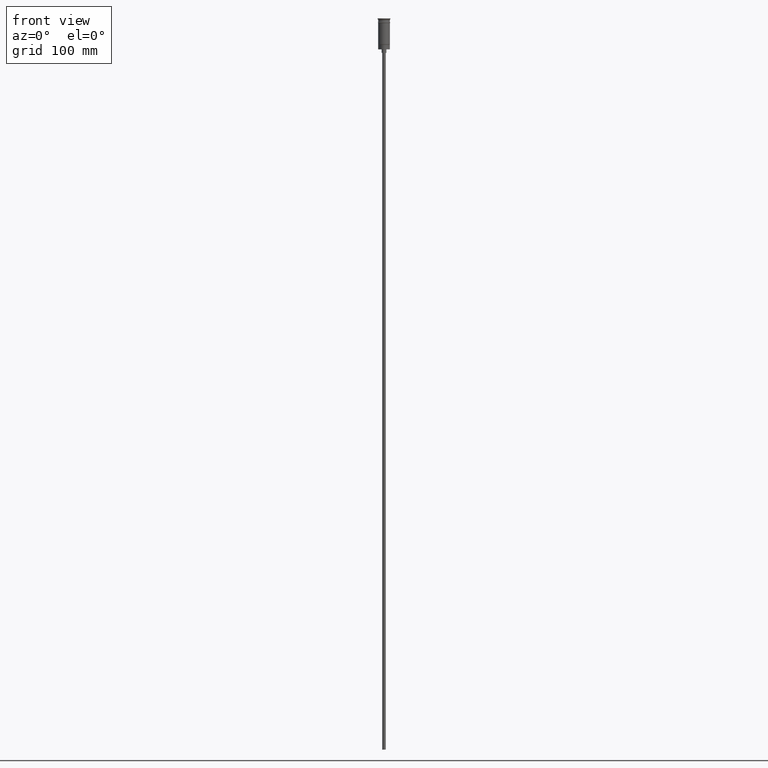
[diagram: clean part render]
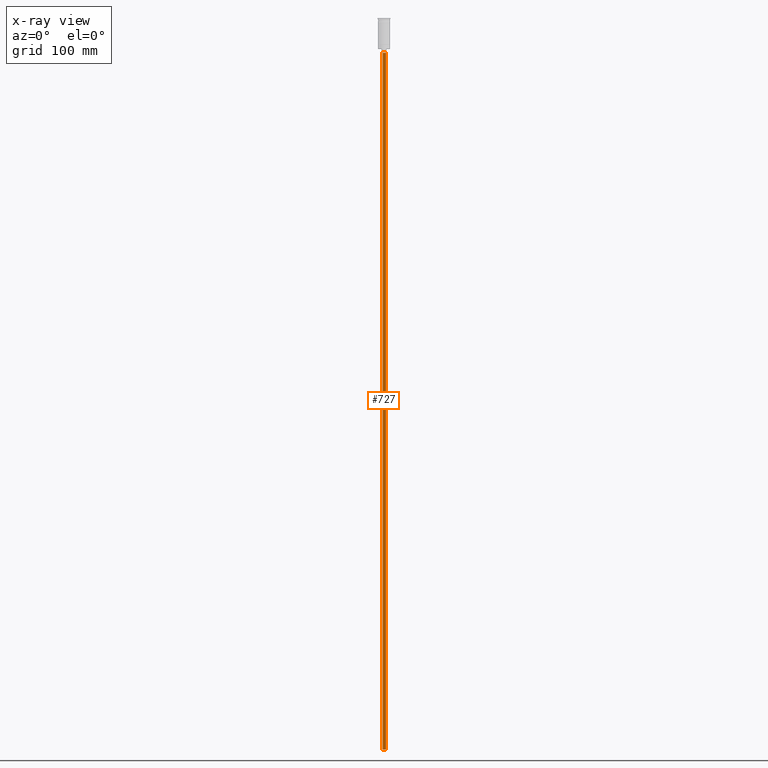
[diagram: x-ray — body ghosted, one internal face saturated and labeled with its STEP entity id]
A machine part, front view, then the same camera in x-ray: the body is ghosted and one INTERNAL B-rep face — a face not visible from any outside direction — is saturated and labeled: STEP entity #727.
In plain terms, the highlighted cylindrical surface (edge-blend (fillet) strip) has radius 1.5 mm, axis along (-0, -0, 1).
Its self-contained STEP definition (entity closure, byte-faithful):
#4 = VERTEX_POINT ( 'NONE', #322 ) ;
#15 = VERTEX_POINT ( 'NONE', #1532 ) ;
#64 = DIRECTION ( 'NONE',  ( -0.000000000000000000, -0.000000000000000000, 1.000000000000000000 ) ) ;
#122 = ORIENTED_EDGE ( 'NONE', *, *, #1450, .F. ) ;
#138 = EDGE_LOOP ( 'NONE', ( #819, #356, #779, #122 ) ) ;
#322 = CARTESIAN_POINT ( 'NONE',  ( 1.500000000000000222, 0.000000000000000000, -29.50000000000000000 ) ) ;
#356 = ORIENTED_EDGE ( 'NONE', *, *, #1237, .T. ) ;
#392 = VECTOR ( 'NONE', #673, 1000.000000000000000 ) ;
#467 = VERTEX_POINT ( 'NONE', #1404 ) ;
#480 = AXIS2_PLACEMENT_3D ( 'NONE', #1325, #1200, #588 ) ;
#513 = CARTESIAN_POINT ( 'NONE',  ( 0.000000000000000000, 0.000000000000000000, -626.5000000000000000 ) ) ;
#558 = EDGE_CURVE ( 'NONE', #742, #4, #922, .T. ) ;
#588 = DIRECTION ( 'NONE',  ( -1.000000000000000000, 0.000000000000000000, 0.000000000000000000 ) ) ;
#673 = DIRECTION ( 'NONE',  ( -0.000000000000000000, -0.000000000000000000, 1.000000000000000000 ) ) ;
#727 = ADVANCED_FACE ( 'NONE', ( #863 ), #1599, .T. ) ;
#742 = VERTEX_POINT ( 'NONE', #884 ) ;
#751 = DIRECTION ( 'NONE',  ( 1.000000000000000000, 0.000000000000000000, 0.000000000000000000 ) ) ;
#779 = ORIENTED_EDGE ( 'NONE', *, *, #558, .T. ) ;
#819 = ORIENTED_EDGE ( 'NONE', *, *, #1381, .F. ) ;
#863 = FACE_OUTER_BOUND ( 'NONE', #138, .T. ) ;
#884 = CARTESIAN_POINT ( 'NONE',  ( -1.500000000000000222, 1.836970198721030181E-16, -29.50000000000000000 ) ) ;
#892 = CARTESIAN_POINT ( 'NONE',  ( -1.500000000000000222, 1.836970198721030181E-16, -626.5000000000000000 ) ) ;
#916 = CIRCLE ( 'NONE', #1370, 1.500000000000000222 ) ;
#922 = CIRCLE ( 'NONE', #480, 1.500000000000000222 ) ;
#1043 = VECTOR ( 'NONE', #64, 1000.000000000000000 ) ;
#1044 = LINE ( 'NONE', #892, #392 ) ;
#1050 = DIRECTION ( 'NONE',  ( 0.000000000000000000, 0.000000000000000000, -1.000000000000000000 ) ) ;
#1077 = CARTESIAN_POINT ( 'NONE',  ( 1.500000000000000222, 0.000000000000000000, -626.5000000000000000 ) ) ;
#1168 = AXIS2_PLACEMENT_3D ( 'NONE', #513, #1361, #751 ) ;
#1181 = LINE ( 'NONE', #1077, #1043 ) ;
#1200 = DIRECTION ( 'NONE',  ( 0.000000000000000000, 0.000000000000000000, -1.000000000000000000 ) ) ;
#1237 = EDGE_CURVE ( 'NONE', #467, #742, #1044, .T. ) ;
#1320 = DIRECTION ( 'NONE',  ( -1.000000000000000000, 0.000000000000000000, 0.000000000000000000 ) ) ;
#1325 = CARTESIAN_POINT ( 'NONE',  ( 0.000000000000000000, 0.000000000000000000, -29.50000000000000000 ) ) ;
#1361 = DIRECTION ( 'NONE',  ( -0.000000000000000000, -0.000000000000000000, 1.000000000000000000 ) ) ;
#1370 = AXIS2_PLACEMENT_3D ( 'NONE', #1430, #1050, #1320 ) ;
#1381 = EDGE_CURVE ( 'NONE', #467, #15, #916, .T. ) ;
#1404 = CARTESIAN_POINT ( 'NONE',  ( -1.500000000000000222, 1.836970198721030181E-16, -626.5000000000000000 ) ) ;
#1430 = CARTESIAN_POINT ( 'NONE',  ( 0.000000000000000000, 0.000000000000000000, -626.5000000000000000 ) ) ;
#1450 = EDGE_CURVE ( 'NONE', #15, #4, #1181, .T. ) ;
#1532 = CARTESIAN_POINT ( 'NONE',  ( 1.500000000000000222, 0.000000000000000000, -626.5000000000000000 ) ) ;
#1599 = CYLINDRICAL_SURFACE ( 'NONE', #1168, 1.500000000000000222 ) ;